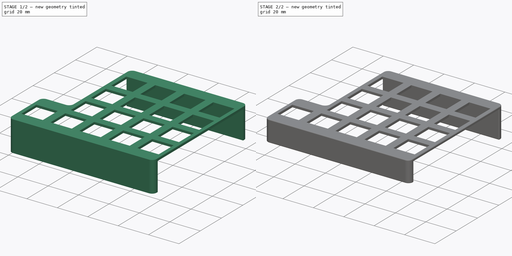
[diagram: build sequence overview — one tinted view per stage of 2, left to right]
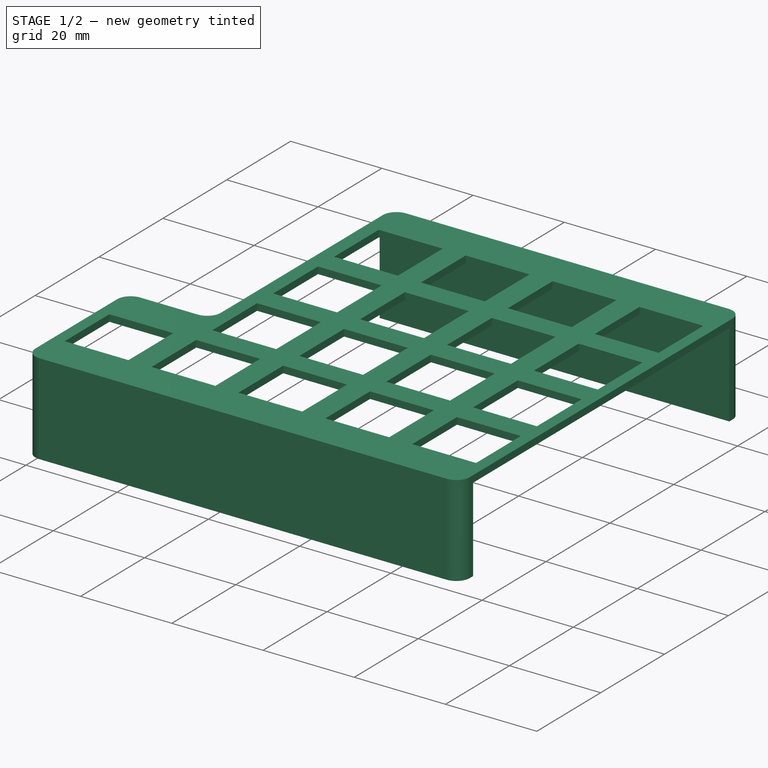
[diagram: stage 1 of 2 — iso view after this stage's code; geometry added in this stage tinted green]
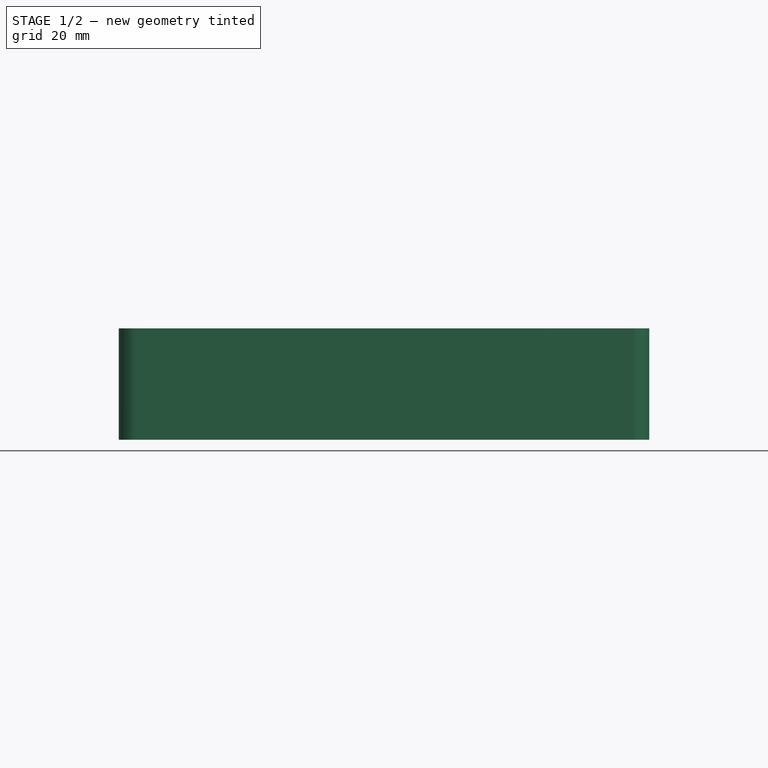
[diagram: stage 1 of 2 — front view after this stage's code; geometry added in this stage tinted green]
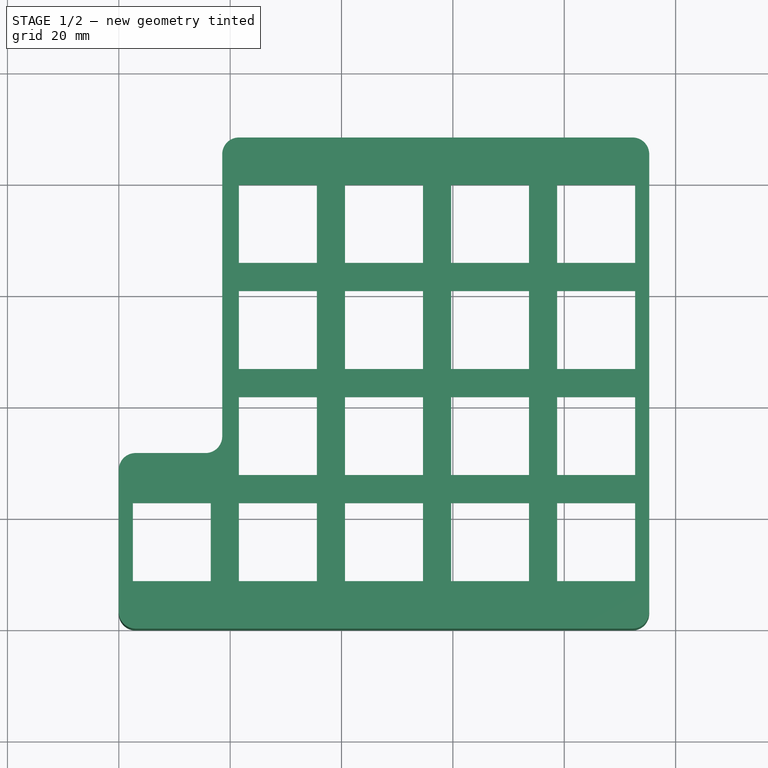
[diagram: stage 1 of 2 — top view after this stage's code; geometry added in this stage tinted green]
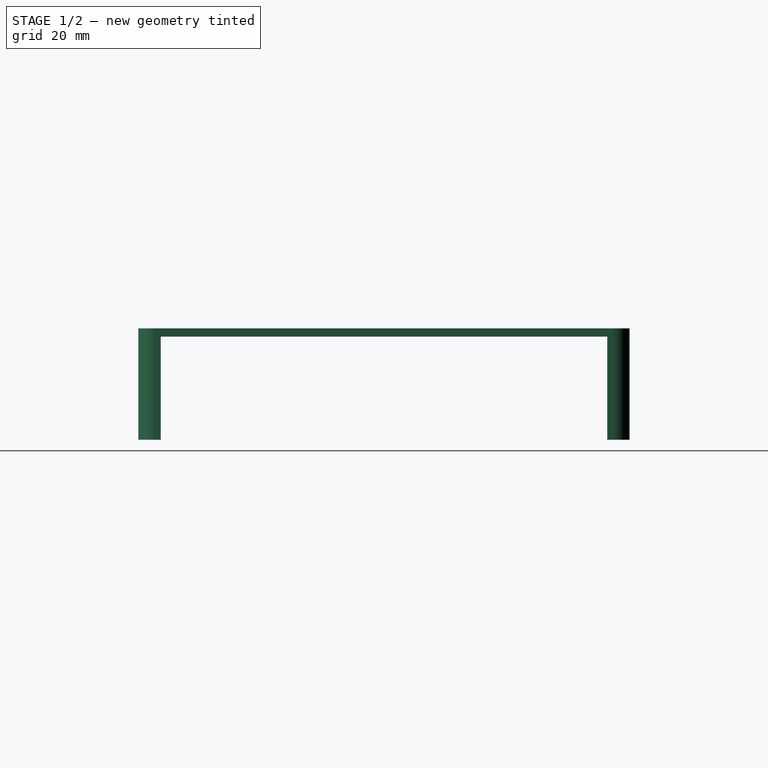
[diagram: stage 1 of 2 — right view after this stage's code; geometry added in this stage tinted green]
FCSTD DOCUMENT  (FreeCAD 0.20R)
Label: dpad-case-2
License: All rights reserved
LicenseURL: http://en.wikipedia.org/wiki/All_rights_reserved
objects: Sketcher::SketchObject×3, PartDesign::Pocket×2, PartDesign::Pad×1, PartDesign::Fillet×1, PartDesign::Body×1
note: 12 computed .brp shape members not serialized (recipe doc carries the construction recipe); baked Part::Feature solids carry a one-line shape summary decoded from their .brp

FEATURE [Sketcher::SketchObject] Sketch
  FullyConstrained = false
  sketch-geometry (80):
    g0: LineSegment StartX=2.52457 StartY=22.5254 StartZ=0 EndX=16.5241 EndY=22.5254 EndZ=0
    g1: LineSegment StartX=16.5241 StartY=22.5254 StartZ=0 EndX=16.5241 EndY=8.52595 EndZ=0
    g2: LineSegment StartX=16.5241 StartY=8.52595 StartZ=0 EndX=2.52457 EndY=8.52595 EndZ=0
    g3: LineSegment StartX=2.52457 StartY=8.52595 StartZ=0 EndX=2.52457 EndY=22.5254 EndZ=0
    g4: LineSegment StartX=21.5746 StartY=22.5254 StartZ=0 EndX=35.5739 EndY=22.5254 EndZ=0
    g5: LineSegment StartX=35.5739 StartY=22.5254 StartZ=0 EndX=35.5739 EndY=8.52595 EndZ=0
    g6: LineSegment StartX=35.5739 StartY=8.52595 StartZ=0 EndX=21.5746 EndY=8.52595 EndZ=0
    g7: LineSegment StartX=21.5746 StartY=8.52595 StartZ=0 EndX=21.5746 EndY=22.5254 EndZ=0
    g8: LineSegment StartX=40.6246 StartY=22.5254 StartZ=0 EndX=54.6239 EndY=22.5254 EndZ=0
    g9: LineSegment StartX=54.6239 StartY=22.5254 StartZ=0 EndX=54.6239 EndY=8.52595 EndZ=0
    g10: LineSegment StartX=54.6239 StartY=8.52595 StartZ=0 EndX=40.6246 EndY=8.52595 EndZ=0
    g11: LineSegment StartX=40.6246 StartY=8.52595 StartZ=0 EndX=40.6246 EndY=22.5254 EndZ=0
    g12: LineSegment StartX=59.6746 StartY=22.5254 StartZ=0 EndX=73.6739 EndY=22.5254 EndZ=0
    g13: LineSegment StartX=73.6739 StartY=22.5254 StartZ=0 EndX=73.6739 EndY=8.52595 EndZ=0
    g14: LineSegment StartX=73.6739 StartY=8.52595 StartZ=0 EndX=59.6746 EndY=8.52595 EndZ=0
    g15: LineSegment StartX=59.6746 StartY=8.52595 StartZ=0 EndX=59.6746 EndY=22.5254 EndZ=0
    g16: LineSegment StartX=78.7246 StartY=22.5254 StartZ=0 EndX=92.7239 EndY=22.5254 EndZ=0
    g17: LineSegment StartX=92.7239 StartY=22.5254 StartZ=0 EndX=92.7239 EndY=8.52595 EndZ=0
    g18: LineSegment StartX=92.7239 StartY=8.52595 StartZ=0 EndX=78.7246 EndY=8.52595 EndZ=0
    g19: LineSegment StartX=78.7246 StartY=8.52595 StartZ=0 EndX=78.7246 EndY=22.5254 EndZ=0
    g20: LineSegment StartX=21.5746 StartY=41.5753 StartZ=0 EndX=35.5739 EndY=41.5753 EndZ=0
    g21: LineSegment StartX=35.5739 StartY=41.5753 StartZ=0 EndX=35.5739 EndY=27.5759 EndZ=0
    g22: LineSegment StartX=35.5739 StartY=27.5759 StartZ=0 EndX=21.5746 EndY=27.5759 EndZ=0
    g23: LineSegment StartX=21.5746 StartY=27.5759 StartZ=0 EndX=21.5746 EndY=41.5753 EndZ=0
    g24: LineSegment StartX=40.6246 StartY=41.5753 StartZ=0 EndX=54.6239 EndY=41.5753 EndZ=0
    g25: LineSegment StartX=54.6239 StartY=41.5753 StartZ=0 EndX=54.6239 EndY=27.5759 EndZ=0
    g26: LineSegment StartX=54.6239 StartY=27.5759 StartZ=0 EndX=40.6246 EndY=27.5759 EndZ=0
    g27: LineSegment StartX=40.6246 StartY=27.5759 StartZ=0 EndX=40.6246 EndY=41.5753 EndZ=0
    g28: LineSegment StartX=59.6746 StartY=41.5753 StartZ=0 EndX=73.6739 EndY=41.5753 EndZ=0
    g29: LineSegment StartX=73.6739 StartY=41.5753 StartZ=0 EndX=73.6739 EndY=27.5759 EndZ=0
    g30: LineSegment StartX=73.6739 StartY=27.5759 StartZ=0 EndX=59.6746 EndY=27.5759 EndZ=0
    g31: LineSegment StartX=59.6746 StartY=27.5759 StartZ=0 EndX=59.6746 EndY=41.5753 EndZ=0
    g32: LineSegment StartX=78.7246 StartY=41.5753 StartZ=0 EndX=92.7239 EndY=41.5753 EndZ=0
    g33: LineSegment StartX=92.7239 StartY=41.5753 StartZ=0 EndX=92.7239 EndY=27.5759 EndZ=0
    g34: LineSegment StartX=92.7239 StartY=27.5759 StartZ=0 EndX=78.7246 EndY=27.5759 EndZ=0
    g35: LineSegment StartX=78.7246 StartY=27.5759 StartZ=0 EndX=78.7246 EndY=41.5753 EndZ=0
    g36: LineSegment StartX=21.5746 StartY=60.6254 StartZ=0 EndX=35.5739 EndY=60.6254 EndZ=0
    g37: LineSegment StartX=35.5739 StartY=60.6254 StartZ=0 EndX=35.5739 EndY=46.6261 EndZ=0
    g38: LineSegment StartX=35.5739 StartY=46.6261 StartZ=0 EndX=21.5746 EndY=46.6261 EndZ=0
    g39: LineSegment StartX=21.5746 StartY=46.6261 StartZ=0 EndX=21.5746 EndY=60.6254 EndZ=0
    g40: LineSegment StartX=40.6246 StartY=60.6254 StartZ=0 EndX=54.6239 EndY=60.6254 EndZ=0
    g41: LineSegment StartX=54.6239 StartY=60.6254 StartZ=0 EndX=54.6239 EndY=46.6261 EndZ=0
    g42: LineSegment StartX=54.6239 StartY=46.6261 StartZ=0 EndX=40.6246 EndY=46.6261 EndZ=0
    g43: LineSegment StartX=40.6246 StartY=46.6261 StartZ=0 EndX=40.6246 EndY=60.6254 EndZ=0
    g44: LineSegment StartX=59.6746 StartY=60.6254 StartZ=0 EndX=73.6739 EndY=60.6254 EndZ=0
    g45: LineSegment StartX=73.6739 StartY=60.6254 StartZ=0 EndX=73.6739 EndY=46.6261 EndZ=0
    g46: LineSegment StartX=73.6739 StartY=46.6261 StartZ=0 EndX=59.6746 EndY=46.6261 EndZ=0
    g47: LineSegment StartX=59.6746 StartY=46.6261 StartZ=0 EndX=59.6746 EndY=60.6254 EndZ=0
    g48: LineSegment StartX=78.7246 StartY=60.6254 StartZ=0 EndX=92.7239 EndY=60.6254 EndZ=0
    g49: LineSegment StartX=92.7239 StartY=60.6254 StartZ=0 EndX=92.7239 EndY=46.6261 EndZ=0
    g50: LineSegment StartX=92.7239 StartY=46.6261 StartZ=0 EndX=78.7246 EndY=46.6261 EndZ=0
    g51: LineSegment StartX=78.7246 StartY=46.6261 StartZ=0 EndX=78.7246 EndY=60.6254 EndZ=0
    g52: LineSegment StartX=21.5746 StartY=79.6754 StartZ=0 EndX=35.5739 EndY=79.6754 EndZ=0
    g53: LineSegment StartX=35.5739 StartY=79.6754 StartZ=0 EndX=35.5739 EndY=65.6761 EndZ=0
    g54: LineSegment StartX=35.5739 StartY=65.6761 StartZ=0 EndX=21.5746 EndY=65.6761 EndZ=0
    g55: LineSegment StartX=21.5746 StartY=65.6761 StartZ=0 EndX=21.5746 EndY=79.6754 EndZ=0
    g56: LineSegment StartX=40.6246 StartY=79.6754 StartZ=0 EndX=54.6239 EndY=79.6754 EndZ=0
    g57: LineSegment StartX=54.6239 StartY=79.6754 StartZ=0 EndX=54.6239 EndY=65.6761 EndZ=0
    g58: LineSegment StartX=54.6239 StartY=65.6761 StartZ=0 EndX=40.6246 EndY=65.6761 EndZ=0
    g59: LineSegment StartX=40.6246 StartY=65.6761 StartZ=0 EndX=40.6246 EndY=79.6754 EndZ=0
    g60: LineSegment StartX=59.6746 StartY=79.6754 StartZ=0 EndX=73.6739 EndY=79.6754 EndZ=0
    g61: LineSegment StartX=73.6739 StartY=79.6754 StartZ=0 EndX=73.6739 EndY=65.6761 EndZ=0
    g62: LineSegment StartX=73.6739 StartY=65.6761 StartZ=0 EndX=59.6746 EndY=65.6761 EndZ=0
    g63: LineSegment StartX=59.6746 StartY=65.6761 StartZ=0 EndX=59.6746 EndY=79.6754 EndZ=0
    g64: LineSegment StartX=78.7246 StartY=79.6754 StartZ=0 EndX=92.7239 EndY=79.6754 EndZ=0
    g65: LineSegment StartX=92.7239 StartY=79.6754 StartZ=0 EndX=92.7239 EndY=65.6761 EndZ=0
    g66: LineSegment StartX=92.7239 StartY=65.6761 StartZ=0 EndX=78.7246 EndY=65.6761 EndZ=0
    g67: LineSegment StartX=78.7246 StartY=65.6761 StartZ=0 EndX=78.7246 EndY=79.6754 EndZ=0
    g68: ArcOfCircle CenterX=92.2501 CenterY=85.1998 CenterZ=0 NormalX=0 NormalY=0 NormalZ=1 AngleXU=0 Radius=3 StartAngle=0 EndAngle=1.5708
    g69: ArcOfCircle CenterX=3 CenterY=3 CenterZ=0 NormalX=0 NormalY=0 NormalZ=1 AngleXU=0 Radius=3 StartAngle=3.14159 EndAngle=4.71239
    g70: LineSegment StartX=92.2501 StartY=9e-16 StartZ=0 EndX=3 EndY=9e-16 EndZ=0
    g71: LineSegment StartX=95.2501 StartY=85.1998 StartZ=0 EndX=95.2501 EndY=3 EndZ=0
    g72: ArcOfCircle CenterX=92.2501 CenterY=3 CenterZ=0 NormalX=0 NormalY=0 NormalZ=1 AngleXU=0 Radius=3 StartAngle=4.71239 EndAngle=6.28319
    g73: LineSegment StartX=21.5746 StartY=88.1998 StartZ=0 EndX=92.2501 EndY=88.1998 EndZ=0
    g74: ArcOfCircle CenterX=21.5746 CenterY=85.1998 CenterZ=0 NormalX=0 NormalY=0 NormalZ=1 AngleXU=0 Radius=3 StartAngle=1.5708 EndAngle=3.14159
    g75: LineSegment StartX=0 StartY=3 StartZ=0 EndX=0 EndY=28.5254 EndZ=0
    g76: ArcOfCircle CenterX=3 CenterY=28.5254 CenterZ=0 NormalX=0 NormalY=0 NormalZ=1 AngleXU=0 Radius=3 StartAngle=1.5708 EndAngle=3.14159
    g77: LineSegment StartX=3 StartY=31.5254 StartZ=0 EndX=15.5746 EndY=31.5254 EndZ=0
    g78: LineSegment StartX=18.5746 StartY=34.5254 StartZ=0 EndX=18.5746 EndY=85.1998 EndZ=0
    g79: ArcOfCircle CenterX=15.5746 CenterY=34.5254 CenterZ=0 NormalX=0 NormalY=0 NormalZ=1 AngleXU=0 Radius=3 StartAngle=4.71239 EndAngle=6.28319
  constraints (80):
    c: Coincident(g69,g75)
    c: Coincident(g75,g76)
    c: Coincident(g2,g3)
    c: Coincident(g0,g3)
    c: Coincident(g69,g70)
    c: Coincident(g76,g77)
    c: Coincident(g77,g79)
    c: Coincident(g1,g2)
    c: Coincident(g0,g1)
    c: Coincident(g78,g79)
    c: Coincident(g74,g78)
    c: Coincident(g6,g7)
    c: Coincident(g4,g7)
    c: Coincident(g22,g23)
    c: Coincident(g20,g23)
    c: Coincident(g38,g39)
    c: Coincident(g36,g39)
    c: Coincident(g54,g55)
    c: Coincident(g52,g55)
    c: Coincident(g73,g74)
    c: Coincident(g5,g6)
    c: Coincident(g4,g5)
    c: Coincident(g21,g22)
    c: Coincident(g20,g21)
    c: Coincident(g37,g38)
    c: Coincident(g36,g37)
    c: Coincident(g53,g54)
    c: Coincident(g52,g53)
    c: Coincident(g10,g11)
    c: Coincident(g8,g11)
    c: Coincident(g26,g27)
    c: Coincident(g24,g27)
    c: Coincident(g42,g43)
    c: Coincident(g40,g43)
    c: Coincident(g58,g59)
    c: Coincident(g56,g59)
    c: Coincident(g9,g10)
    c: Coincident(g8,g9)
    c: Coincident(g25,g26)
    c: Coincident(g24,g25)
    c: Coincident(g41,g42)
    c: Coincident(g40,g41)
    c: Coincident(g57,g58)
    c: Coincident(g56,g57)
    c: Coincident(g14,g15)
    c: Coincident(g12,g15)
    c: Coincident(g30,g31)
    c: Coincident(g28,g31)
    c: Coincident(g46,g47)
    c: Coincident(g44,g47)
    c: Coincident(g62,g63)
    c: Coincident(g60,g63)
    c: Coincident(g13,g14)
    c: Coincident(g12,g13)
    c: Coincident(g29,g30)
    c: Coincident(g28,g29)
    c: Coincident(g45,g46)
    c: Coincident(g44,g45)
    c: Coincident(g61,g62)
    c: Coincident(g60,g61)
    c: Coincident(g18,g19)
    c: Coincident(g16,g19)
    c: Coincident(g34,g35)
    c: Coincident(g32,g35)
    c: Coincident(g50,g51)
    c: Coincident(g48,g51)
    c: Coincident(g66,g67)
    c: Coincident(g64,g67)
    c: Coincident(g70,g72)
    c: Coincident(g68,g73)
    c: Coincident(g17,g18)
    c: Coincident(g16,g17)
    c: Coincident(g33,g34)
    c: Coincident(g32,g33)
    c: Coincident(g49,g50)
    c: Coincident(g48,g49)
    c: Coincident(g65,g66)
    c: Coincident(g64,g65)
    c: Coincident(g71,g72)
    c: Coincident(g68,g71)
FEATURE [PartDesign::Pad] Pad
  Direction = (0,0,1)
  Length = 20
  Length2 = 10
  Profile = -> Sketch
  ReferenceAxis = -> Sketch [N_Axis]
  Type = 0
FEATURE [Sketcher::SketchObject] Sketch001
  ExternalGeometry = -> [Pad]
  FullyConstrained = true
  MapMode = 5
  Placement = pos=(0,0,0) rot=(1,0,0;3.14159rad)
  Support = -> [Pad]
  sketch-geometry (4):
    g0: LineSegment StartX=0 StartY=-4 StartZ=0 EndX=95.2501 EndY=-4 EndZ=0
    g1: LineSegment StartX=95.2501 StartY=-4 StartZ=0 EndX=95.2501 EndY=-84.1998 EndZ=0
    g2: LineSegment StartX=95.2501 StartY=-84.1998 StartZ=0 EndX=0 EndY=-84.1998 EndZ=0
    g3: LineSegment StartX=0 StartY=-84.1998 StartZ=0 EndX=0 EndY=-4 EndZ=0
  constraints (12):
    c: Coincident(g0,g1)
    c: Coincident(g1,g2)
    c: Coincident(g2,g3)
    c: Coincident(g3,g0)
    c: Horizontal(g0)
    c: Horizontal(g2)
    c: Vertical(g1)
    c: Vertical(g3)
    c: PointOnObject(g0,g-5)
    c: PointOnObject(g1,g-6)
    c: DistanceY(g-4,g1) = 4
    c: DistanceY(g0,g-3) = 4
FEATURE [PartDesign::Pocket] Pocket
  BaseFeature = -> Pad
  Direction = (0,0,1)
  Length = 0
  Length2 = 5
  Offset = -1.5
  Profile = -> Sketch001
  ReferenceAxis = -> Sketch001 [N_Axis]
  Type = 3
  UpToFace = -> Pad [Face82]
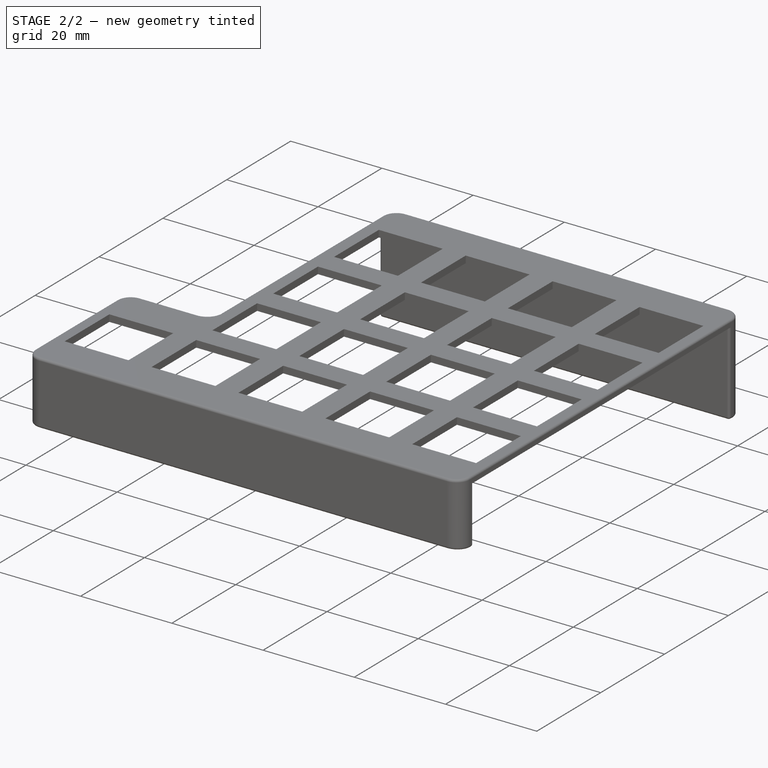
[diagram: stage 2 of 2 — iso view after this stage's code; geometry added in this stage tinted green]
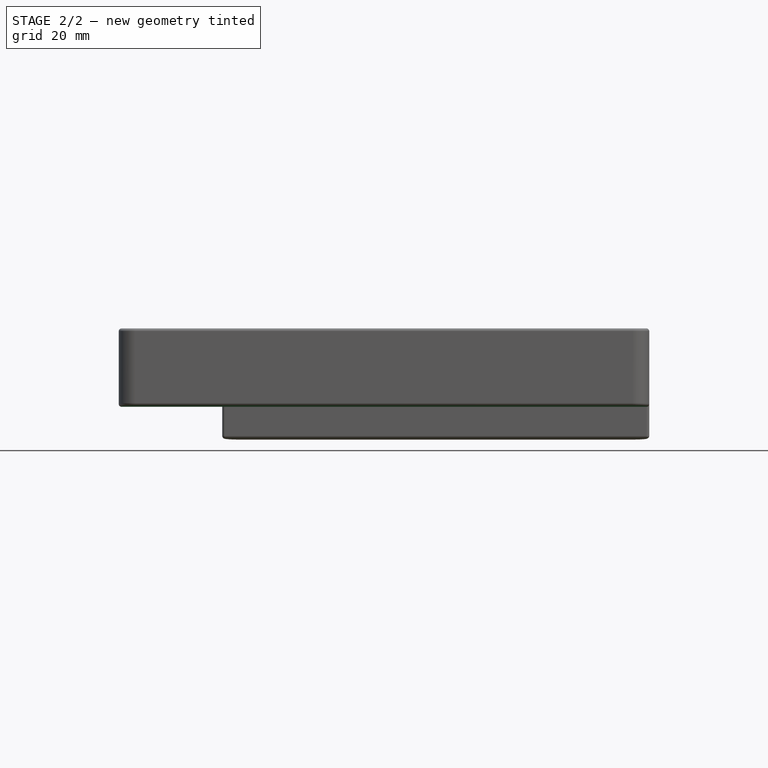
[diagram: stage 2 of 2 — front view after this stage's code; geometry added in this stage tinted green]
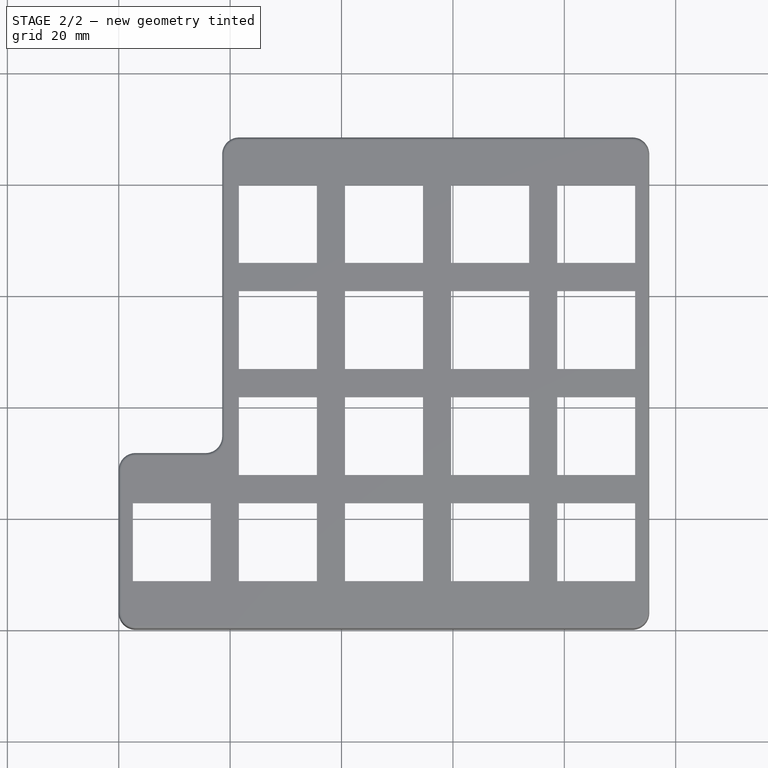
[diagram: stage 2 of 2 — top view after this stage's code; geometry added in this stage tinted green]
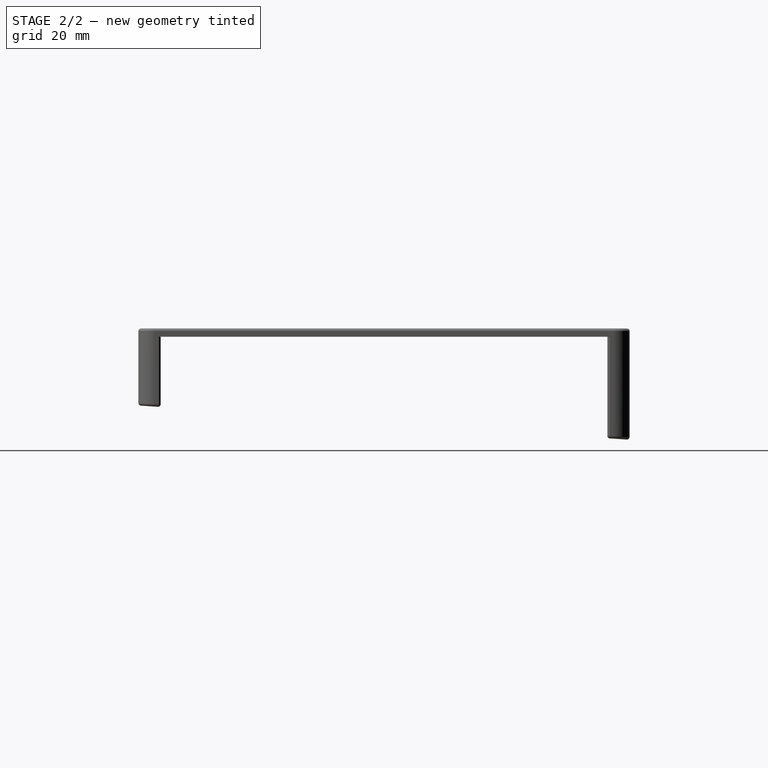
[diagram: stage 2 of 2 — right view after this stage's code; geometry added in this stage tinted green]
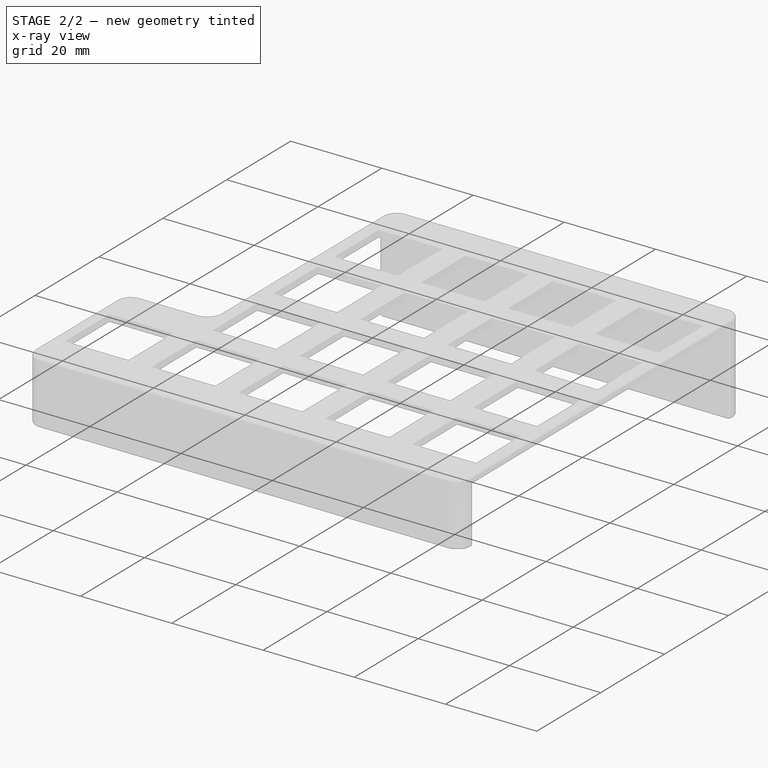
[diagram: stage 2 of 2 — x-ray composite at the iso view; earlier geometry ghosted, this stage's added geometry solid]
FEATURE [Sketcher::SketchObject] Sketch002
  ExternalGeometry = -> [Pocket]
  FullyConstrained = true
  MapMode = 5
  Placement = pos=(95.2501,0,0) rot=(0.57735,0.57735,0.57735;2.0944rad)
  Support = -> [Pocket]
  sketch-geometry (3):
    g0: LineSegment StartX=9e-16 StartY=6.16753 StartZ=0 EndX=88.1998 EndY=9e-16 EndZ=0
    g1: LineSegment StartX=88.1998 StartY=9e-16 StartZ=0 EndX=0 EndY=0 EndZ=0
    g2: LineSegment StartX=0 StartY=0 StartZ=0 EndX=9e-16 EndY=6.16753 EndZ=0
  constraints (7):
    c: PointOnObject(g0,g-4)
    c: Coincident(g0,g-3)
    c: Coincident(g0,g1)
    c: Coincident(g1,g-4)
    c: Coincident(g1,g2)
    c: Coincident(g2,g0)
    c: Angle(g0,g1) = 0.0698132
FEATURE [PartDesign::Pocket] Pocket001
  BaseFeature = -> Pocket
  Direction = (-1,0,0)
  Length = 5
  Length2 = 5
  Profile = -> Sketch002
  ReferenceAxis = -> Sketch002 [N_Axis]
  Type = 1
FEATURE [PartDesign::Fillet] Fillet
  Base = -> Pocket001 [Edge11,Edge105,Edge13,Edge96,Edge25,Face2,Face9,Edge97]
  BaseFeature = -> Pocket001
  Radius = 0.5
  SupportTransform = false
  UseAllEdges = false
FEATURE [PartDesign::Body] Body
  Group = -> [Sketch,Pad,Sketch001,Pocket,Sketch002,Pocket001,Fillet]
  Origin = -> Origin
  Tip = -> Fillet
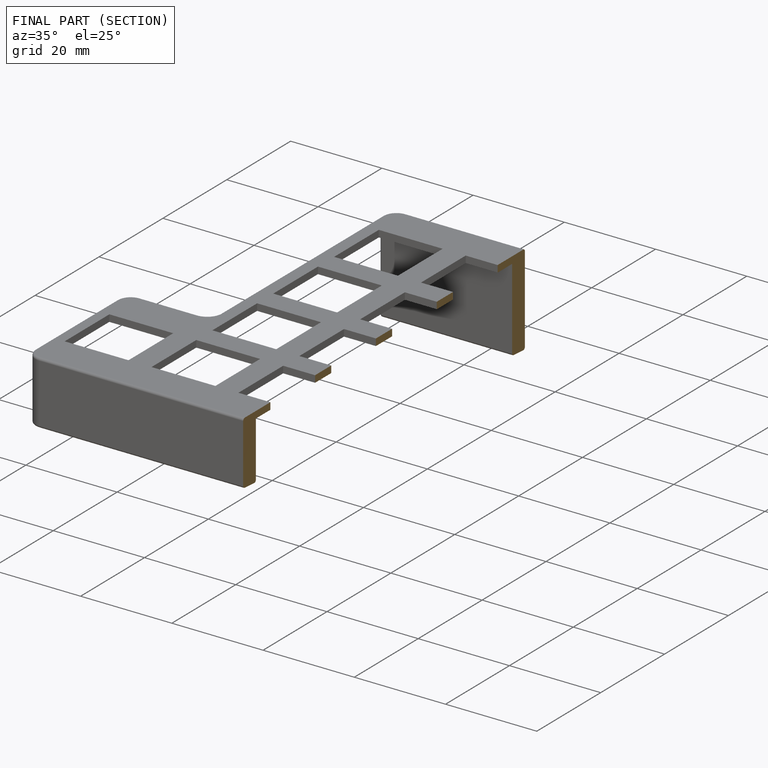
[diagram: finished part — half-section view (interior)]
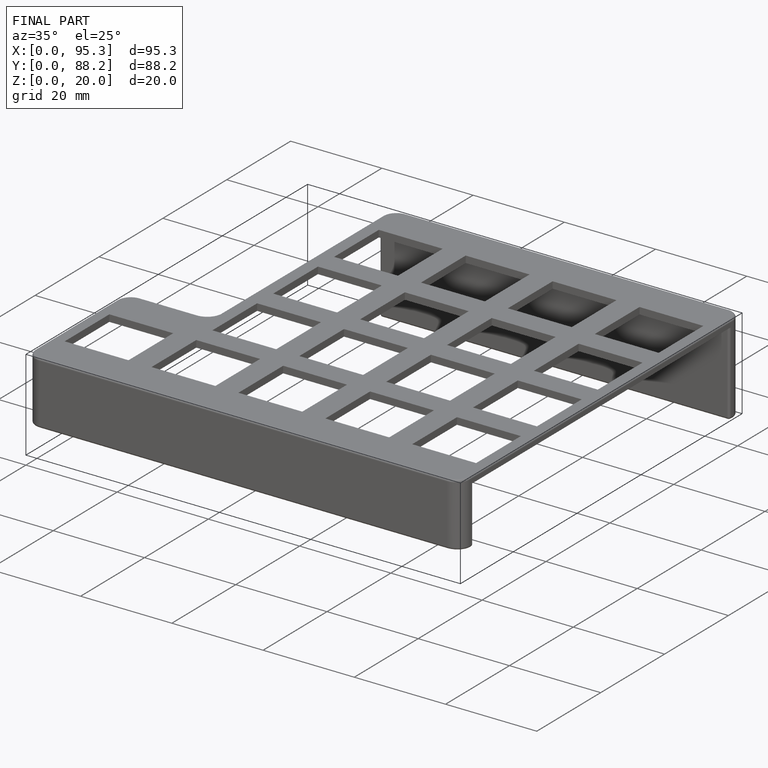
[diagram: finished part — iso view with bounding-box wireframe]
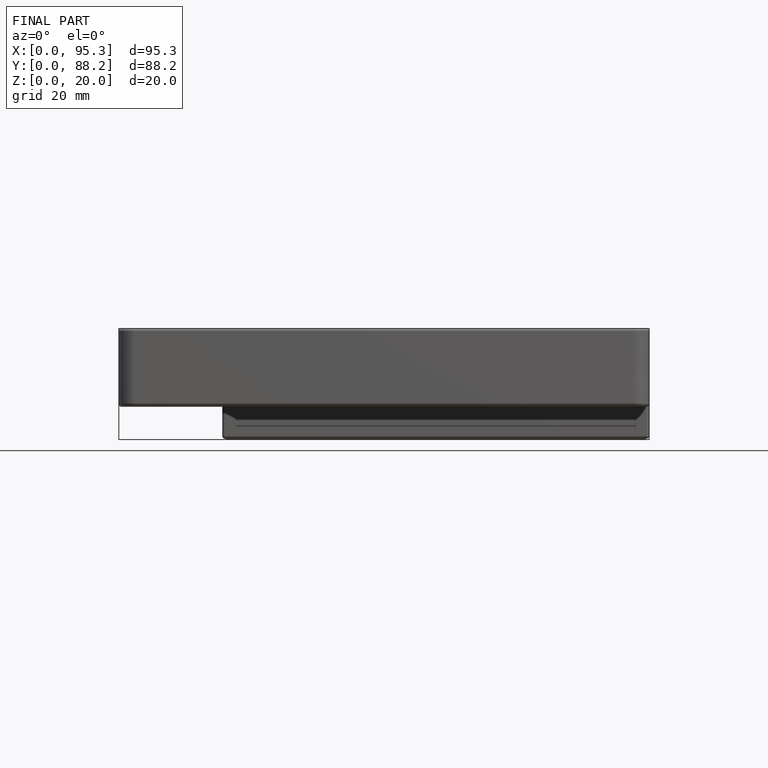
[diagram: finished part — front view with bounding-box wireframe]
